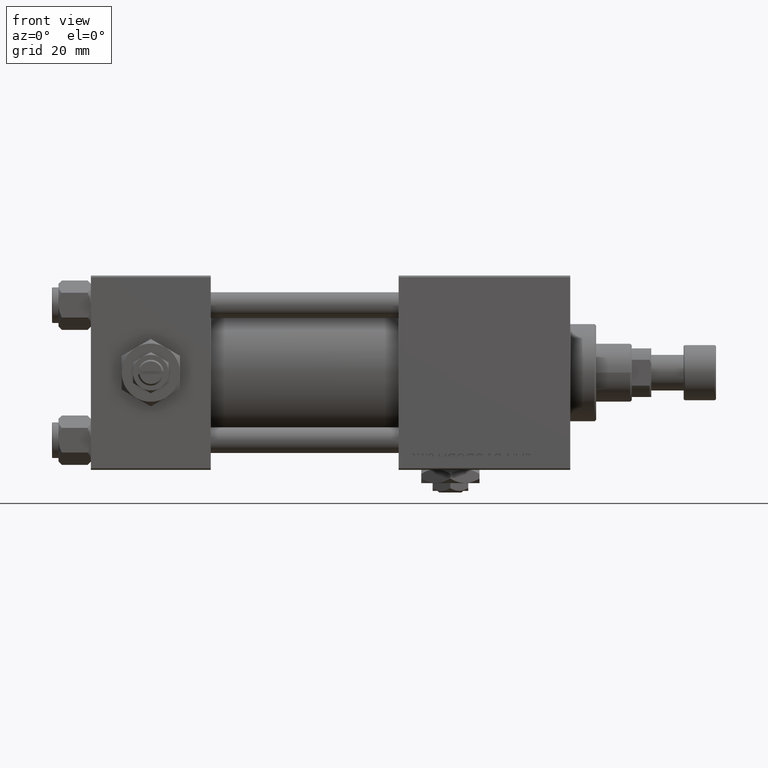
[diagram: clean part render]
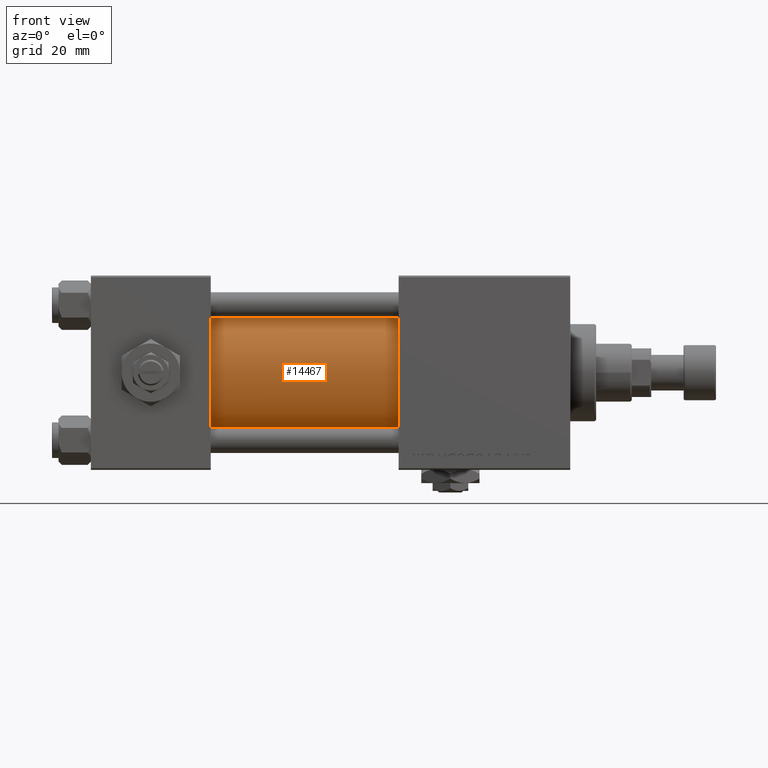
[diagram: same view with one face highlighted and labeled with its STEP entity id]
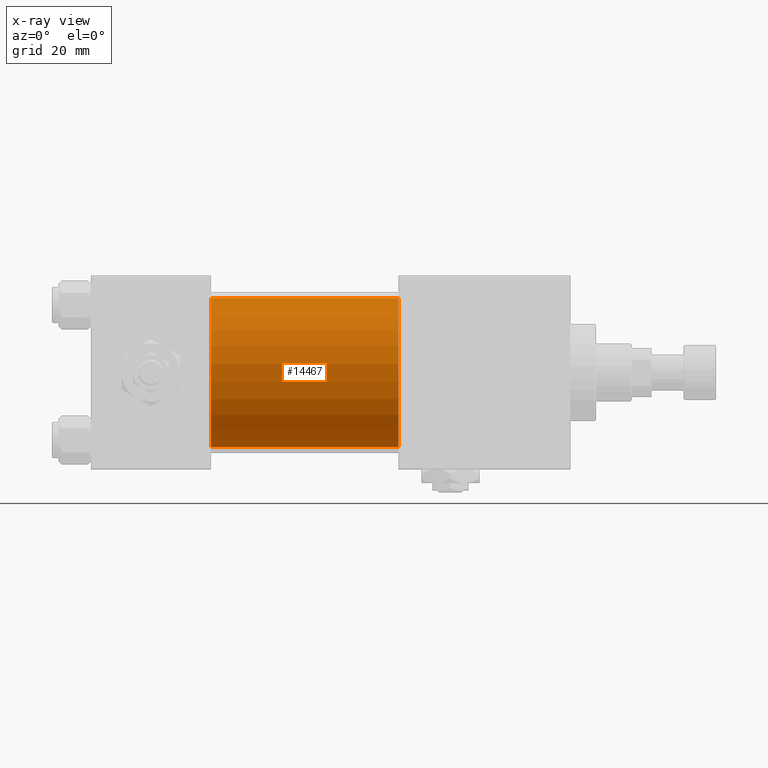
[diagram: x-ray of the same camera — body ghosted, the highlighted face saturated]
A machine part, front view. The second image highlights one B-rep face of the part: STEP entity #14467.
The next image is the same camera in x-ray: the body ghosted, the highlighted face saturated — about 0% of this face is hidden behind the body in this view.
In plain terms, the highlighted cylindrical surface (partial cylindrical patch) has radius 23 mm, axis along (-1, -0, -0).
Its self-contained STEP definition (entity closure, byte-faithful):
#443 = ORIENTED_EDGE ( 'NONE', *, *, #46342, .F. ) ;
#2375 = CIRCLE ( 'NONE', #18511, 23.00000000000000000 ) ;
#2821 = CARTESIAN_POINT ( 'NONE',  ( 95.00000000000000000, 2.146024240737012665E-16, -23.00000000000000000 ) ) ;
#4454 = EDGE_CURVE ( 'NONE', #31206, #5072, #48397, .T. ) ;
#4817 = CARTESIAN_POINT ( 'NONE',  ( 95.00000000000000000, -2.602085213965210642E-15, 0.000000000000000000 ) ) ;
#4960 = EDGE_CURVE ( 'NONE', #26901, #5072, #13270, .T. ) ;
#5072 = VERTEX_POINT ( 'NONE', #15023 ) ;
#6360 = DIRECTION ( 'NONE',  ( 0.000000000000000000, 0.000000000000000000, -1.000000000000000000 ) ) ;
#6628 = CARTESIAN_POINT ( 'NONE',  ( 95.00000000000000000, -2.602085213965210642E-15, 0.000000000000000000 ) ) ;
#6886 = DIRECTION ( 'NONE',  ( 1.000000000000000000, 0.000000000000000000, 0.000000000000000000 ) ) ;
#7930 = DIRECTION ( 'NONE',  ( -1.000000000000000000, -0.000000000000000000, -0.000000000000000000 ) ) ;
#8098 = AXIS2_PLACEMENT_3D ( 'NONE', #4817, #25321, #29579 ) ;
#8803 = FACE_OUTER_BOUND ( 'NONE', #9840, .T. ) ;
#9840 = EDGE_LOOP ( 'NONE', ( #46250, #443, #38971, #48373 ) ) ;
#10509 = CARTESIAN_POINT ( 'NONE',  ( 37.00000000000000000, -2.602085213965210642E-15, 0.000000000000000000 ) ) ;
#13270 = CIRCLE ( 'NONE', #14118, 23.00000000000000000 ) ;
#14118 = AXIS2_PLACEMENT_3D ( 'NONE', #10509, #34729, #37652 ) ;
#14467 = ADVANCED_FACE ( 'NONE', ( #8803 ), #49261, .T. ) ;
#15023 = CARTESIAN_POINT ( 'NONE',  ( 37.00000000000000000, 2.146024240737012665E-16, -23.00000000000000000 ) ) ;
#17569 = CARTESIAN_POINT ( 'NONE',  ( 37.00000000000000000, -2.602085213965210642E-15, 23.00000000000000000 ) ) ;
#18511 = AXIS2_PLACEMENT_3D ( 'NONE', #6628, #6886, #6360 ) ;
#20216 = VECTOR ( 'NONE', #21176, 1000.000000000000000 ) ;
#21176 = DIRECTION ( 'NONE',  ( -1.000000000000000000, -0.000000000000000000, -0.000000000000000000 ) ) ;
#23951 = EDGE_CURVE ( 'NONE', #39903, #26901, #29175, .T. ) ;
#25321 = DIRECTION ( 'NONE',  ( -1.000000000000000000, -0.000000000000000000, -0.000000000000000000 ) ) ;
#26901 = VERTEX_POINT ( 'NONE', #17569 ) ;
#28175 = CARTESIAN_POINT ( 'NONE',  ( 95.00000000000000000, 2.146024240737012665E-16, -23.00000000000000000 ) ) ;
#29175 = LINE ( 'NONE', #45395, #20216 ) ;
#29579 = DIRECTION ( 'NONE',  ( 0.000000000000000000, 0.000000000000000000, 1.000000000000000000 ) ) ;
#31206 = VERTEX_POINT ( 'NONE', #2821 ) ;
#32542 = CARTESIAN_POINT ( 'NONE',  ( 95.00000000000000000, -2.602085213965210642E-15, 23.00000000000000000 ) ) ;
#34729 = DIRECTION ( 'NONE',  ( 1.000000000000000000, -0.000000000000000000, 0.000000000000000000 ) ) ;
#37652 = DIRECTION ( 'NONE',  ( 0.000000000000000000, 0.000000000000000000, 1.000000000000000000 ) ) ;
#38971 = ORIENTED_EDGE ( 'NONE', *, *, #23951, .T. ) ;
#39903 = VERTEX_POINT ( 'NONE', #32542 ) ;
#45395 = CARTESIAN_POINT ( 'NONE',  ( 95.00000000000000000, -2.602085213965210642E-15, 23.00000000000000000 ) ) ;
#45554 = VECTOR ( 'NONE', #7930, 1000.000000000000000 ) ;
#46250 = ORIENTED_EDGE ( 'NONE', *, *, #4454, .F. ) ;
#46342 = EDGE_CURVE ( 'NONE', #39903, #31206, #2375, .T. ) ;
#48373 = ORIENTED_EDGE ( 'NONE', *, *, #4960, .T. ) ;
#48397 = LINE ( 'NONE', #28175, #45554 ) ;
#49261 = CYLINDRICAL_SURFACE ( 'NONE', #8098, 23.00000000000000000 ) ;